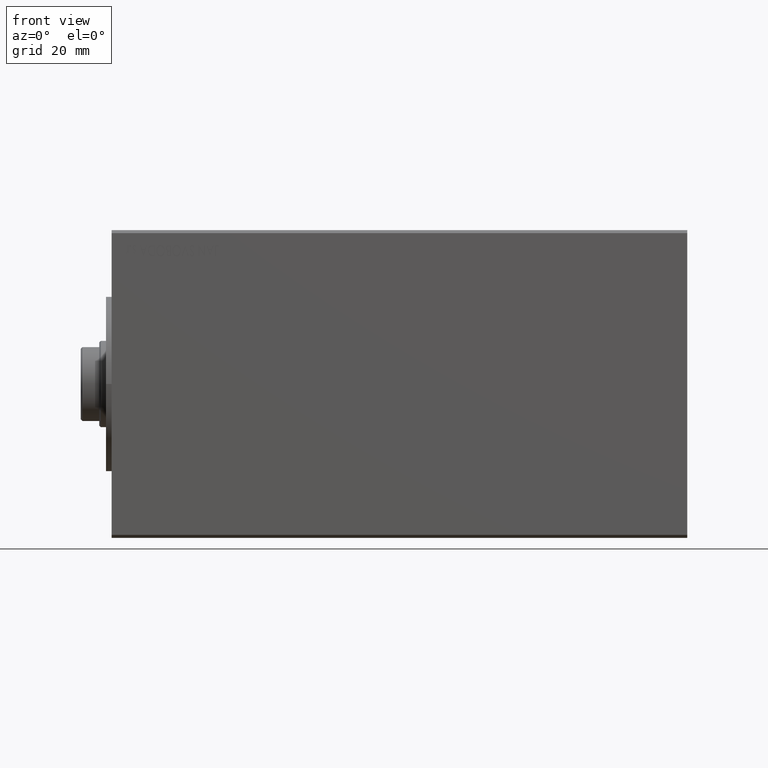
[diagram: clean part render]
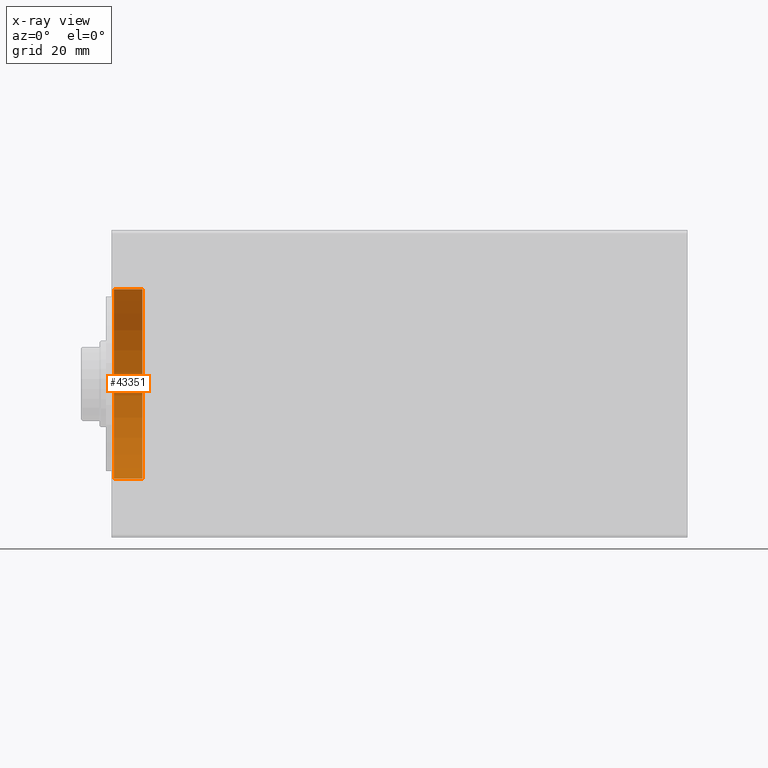
[diagram: x-ray — body ghosted, one internal face saturated and labeled with its STEP entity id]
A machine part, front view, then the same camera in x-ray: the body is ghosted and one INTERNAL B-rep face — a face not visible from any outside direction — is saturated and labeled: STEP entity #43351.
In plain terms, the highlighted cylindrical surface (partial cylindrical patch) has radius 30.75 mm, axis along (-1, -0, -0).
Its self-contained STEP definition (entity closure, byte-faithful):
#923 = VERTEX_POINT ( 'NONE', #27764 ) ;
#1145 = EDGE_CURVE ( 'NONE', #37681, #36220, #30308, .T. ) ;
#1179 = AXIS2_PLACEMENT_3D ( 'NONE', #26800, #40479, #9282 ) ;
#1203 = CYLINDRICAL_SURFACE ( 'NONE', #17444, 30.75000000000000355 ) ;
#4191 = DIRECTION ( 'NONE',  ( 0.000000000000000000, 0.000000000000000000, 1.000000000000000000 ) ) ;
#6937 = CARTESIAN_POINT ( 'NONE',  ( 10.00000000000000000, 3.765788907378111328E-15, -30.75000000000000355 ) ) ;
#8512 = DIRECTION ( 'NONE',  ( -1.000000000000000000, -0.000000000000000000, -0.000000000000000000 ) ) ;
#9282 = DIRECTION ( 'NONE',  ( 0.000000000000000000, 0.000000000000000000, -1.000000000000000000 ) ) ;
#12344 = EDGE_LOOP ( 'NONE', ( #33981, #26401, #28083, #35424 ) ) ;
#13765 = DIRECTION ( 'NONE',  ( -1.000000000000000000, -0.000000000000000000, -0.000000000000000000 ) ) ;
#13842 = CIRCLE ( 'NONE', #41489, 30.75000000000000355 ) ;
#14532 = CARTESIAN_POINT ( 'NONE',  ( 0.7000000000000234923, 0.000000000000000000, 30.75000000000000355 ) ) ;
#16158 = VERTEX_POINT ( 'NONE', #17479 ) ;
#17444 = AXIS2_PLACEMENT_3D ( 'NONE', #25118, #18524, #4191 ) ;
#17479 = CARTESIAN_POINT ( 'NONE',  ( 10.00000000000000000, 3.765788907378111328E-15, -30.75000000000000355 ) ) ;
#17852 = VECTOR ( 'NONE', #13765, 1000.000000000000000 ) ;
#18524 = DIRECTION ( 'NONE',  ( -1.000000000000000000, -0.000000000000000000, -0.000000000000000000 ) ) ;
#21947 = LINE ( 'NONE', #36080, #34784 ) ;
#25118 = CARTESIAN_POINT ( 'NONE',  ( 10.00000000000000000, 0.000000000000000000, 0.000000000000000000 ) ) ;
#25493 = EDGE_CURVE ( 'NONE', #16158, #36220, #44964, .T. ) ;
#25736 = CARTESIAN_POINT ( 'NONE',  ( 10.00000000000000000, 0.000000000000000000, 0.000000000000000000 ) ) ;
#26401 = ORIENTED_EDGE ( 'NONE', *, *, #40663, .F. ) ;
#26800 = CARTESIAN_POINT ( 'NONE',  ( 0.7000000000000234923, 0.000000000000000000, 0.000000000000000000 ) ) ;
#27764 = CARTESIAN_POINT ( 'NONE',  ( 10.00000000000000000, 0.000000000000000000, 30.75000000000000355 ) ) ;
#28083 = ORIENTED_EDGE ( 'NONE', *, *, #35437, .T. ) ;
#30308 = CIRCLE ( 'NONE', #1179, 30.75000000000000355 ) ;
#33981 = ORIENTED_EDGE ( 'NONE', *, *, #25493, .F. ) ;
#34784 = VECTOR ( 'NONE', #8512, 1000.000000000000000 ) ;
#35424 = ORIENTED_EDGE ( 'NONE', *, *, #1145, .T. ) ;
#35437 = EDGE_CURVE ( 'NONE', #923, #37681, #21947, .T. ) ;
#36080 = CARTESIAN_POINT ( 'NONE',  ( 10.00000000000000000, 0.000000000000000000, 30.75000000000000355 ) ) ;
#36220 = VERTEX_POINT ( 'NONE', #41983 ) ;
#36685 = DIRECTION ( 'NONE',  ( 0.000000000000000000, 0.000000000000000000, 1.000000000000000000 ) ) ;
#37681 = VERTEX_POINT ( 'NONE', #14532 ) ;
#38604 = FACE_OUTER_BOUND ( 'NONE', #12344, .T. ) ;
#40324 = DIRECTION ( 'NONE',  ( -1.000000000000000000, 0.000000000000000000, 0.000000000000000000 ) ) ;
#40479 = DIRECTION ( 'NONE',  ( -1.000000000000000000, 0.000000000000000000, 0.000000000000000000 ) ) ;
#40663 = EDGE_CURVE ( 'NONE', #923, #16158, #13842, .T. ) ;
#41489 = AXIS2_PLACEMENT_3D ( 'NONE', #25736, #40324, #36685 ) ;
#41983 = CARTESIAN_POINT ( 'NONE',  ( 0.7000000000000234923, 3.765788907378111328E-15, -30.75000000000000355 ) ) ;
#43351 = ADVANCED_FACE ( 'NONE', ( #38604 ), #1203, .F. ) ;
#44964 = LINE ( 'NONE', #6937, #17852 ) ;